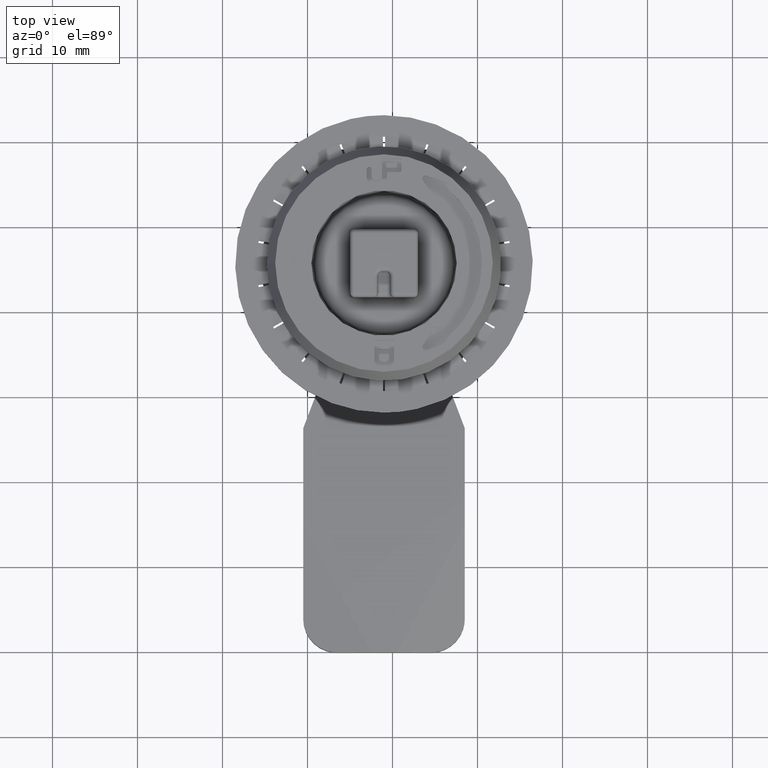
[diagram: clean part render]
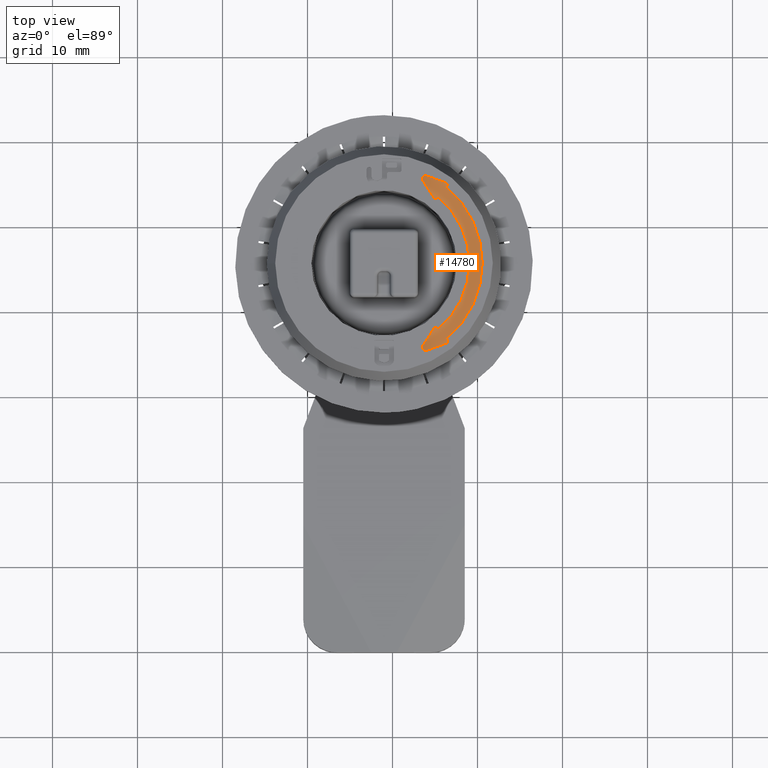
[diagram: same view with one face highlighted and labeled with its STEP entity id]
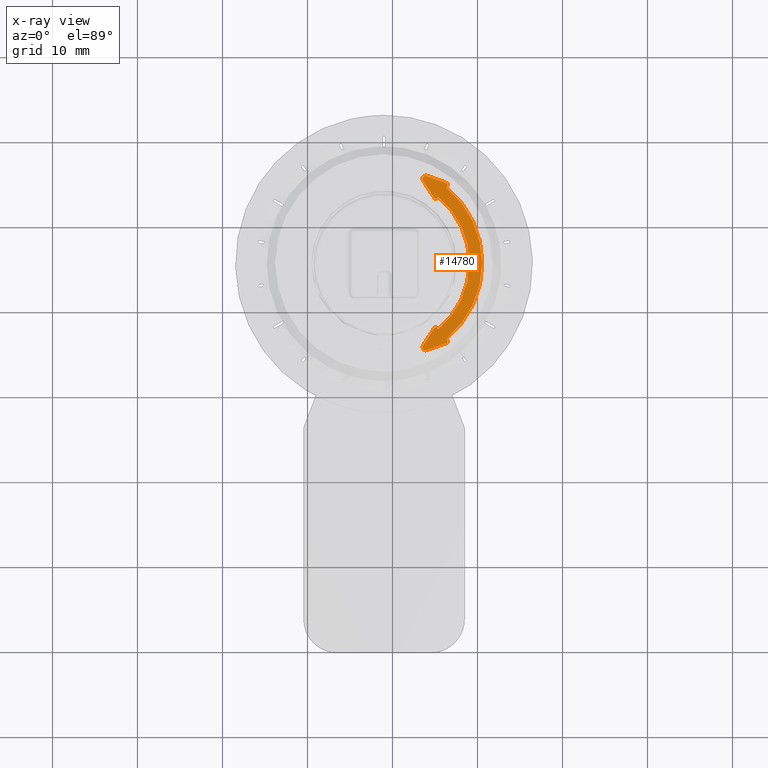
[diagram: x-ray of the same camera — body ghosted, the highlighted face saturated]
A machine part, top view. The second image highlights one B-rep face of the part: STEP entity #14780.
The next image is the same camera in x-ray: the body ghosted, the highlighted face saturated — about 0% of this face is hidden behind the body in this view.
In plain terms, the highlighted planar face has unit normal (0, 0, 1).
Its self-contained STEP definition (entity closure, byte-faithful):
#252=PLANE('',#15726);
#642=CIRCLE('',#15703,10.05);
#643=CIRCLE('',#15706,0.2);
#644=CIRCLE('',#15709,0.375);
#645=CIRCLE('',#15712,0.2);
#646=CIRCLE('',#15715,11.55);
#647=CIRCLE('',#15718,0.2);
#648=CIRCLE('',#15721,0.375);
#649=CIRCLE('',#15724,0.2);
#1435=FACE_OUTER_BOUND('',#2281,.T.);
#2281=EDGE_LOOP('',(#12028,#12029,#12030,#12031,#12032,#12033,#12034,#12035,
#12036,#12037,#12038,#12039,#12040,#12041,#12042,#12043));
#4312=LINE('',#39977,#5347);
#4315=LINE('',#39985,#5350);
#4318=LINE('',#39993,#5353);
#4321=LINE('',#40001,#5356);
#4324=LINE('',#40009,#5359);
#4327=LINE('',#40017,#5362);
#4330=LINE('',#40025,#5365);
#4332=LINE('',#40031,#5367);
#5347=VECTOR('',#17798,0.259996872604128);
#5350=VECTOR('',#17807,2.43790868674977);
#5353=VECTOR('',#17816,2.47070505115499);
#5356=VECTOR('',#17825,0.259269878134381);
#5359=VECTOR('',#17834,0.259269878134349);
#5362=VECTOR('',#17843,2.47070505115536);
#5365=VECTOR('',#17852,2.43790868675029);
#5367=VECTOR('',#17860,0.259996872604128);
#6851=VERTEX_POINT('',#39969);
#6852=VERTEX_POINT('',#39971);
#6853=VERTEX_POINT('',#39975);
#6854=VERTEX_POINT('',#39979);
#6855=VERTEX_POINT('',#39983);
#6856=VERTEX_POINT('',#39987);
#6857=VERTEX_POINT('',#39991);
#6858=VERTEX_POINT('',#39995);
#6859=VERTEX_POINT('',#39999);
#6860=VERTEX_POINT('',#40003);
#6861=VERTEX_POINT('',#40007);
#6862=VERTEX_POINT('',#40011);
#6863=VERTEX_POINT('',#40015);
#6864=VERTEX_POINT('',#40019);
#6865=VERTEX_POINT('',#40023);
#6866=VERTEX_POINT('',#40027);
#8724=EDGE_CURVE('',#6851,#6852,#642,.T.);
#8727=EDGE_CURVE('',#6853,#6851,#4312,.T.);
#8729=EDGE_CURVE('',#6854,#6853,#643,.T.);
#8731=EDGE_CURVE('',#6855,#6854,#4315,.T.);
#8733=EDGE_CURVE('',#6856,#6855,#644,.T.);
#8735=EDGE_CURVE('',#6857,#6856,#4318,.T.);
#8737=EDGE_CURVE('',#6858,#6857,#645,.T.);
#8739=EDGE_CURVE('',#6859,#6858,#4321,.T.);
#8741=EDGE_CURVE('',#6860,#6859,#646,.T.);
#8743=EDGE_CURVE('',#6861,#6860,#4324,.T.);
#8745=EDGE_CURVE('',#6862,#6861,#647,.T.);
#8747=EDGE_CURVE('',#6863,#6862,#4327,.T.);
#8749=EDGE_CURVE('',#6864,#6863,#648,.T.);
#8751=EDGE_CURVE('',#6865,#6864,#4330,.T.);
#8753=EDGE_CURVE('',#6866,#6865,#649,.T.);
#8754=EDGE_CURVE('',#6852,#6866,#4332,.T.);
#12028=ORIENTED_EDGE('',*,*,#8724,.F.);
#12029=ORIENTED_EDGE('',*,*,#8727,.F.);
#12030=ORIENTED_EDGE('',*,*,#8729,.F.);
#12031=ORIENTED_EDGE('',*,*,#8731,.F.);
#12032=ORIENTED_EDGE('',*,*,#8733,.F.);
#12033=ORIENTED_EDGE('',*,*,#8735,.F.);
#12034=ORIENTED_EDGE('',*,*,#8737,.F.);
#12035=ORIENTED_EDGE('',*,*,#8739,.F.);
#12036=ORIENTED_EDGE('',*,*,#8741,.F.);
#12037=ORIENTED_EDGE('',*,*,#8743,.F.);
#12038=ORIENTED_EDGE('',*,*,#8745,.F.);
#12039=ORIENTED_EDGE('',*,*,#8747,.F.);
#12040=ORIENTED_EDGE('',*,*,#8749,.F.);
#12041=ORIENTED_EDGE('',*,*,#8751,.F.);
#12042=ORIENTED_EDGE('',*,*,#8753,.F.);
#12043=ORIENTED_EDGE('',*,*,#8754,.F.);
#14780=ADVANCED_FACE('',(#1435),#252,.T.);
#15703=AXIS2_PLACEMENT_3D('',#39972,#17792,#17793);
#15706=AXIS2_PLACEMENT_3D('',#39981,#17802,#17803);
#15709=AXIS2_PLACEMENT_3D('',#39989,#17811,#17812);
#15712=AXIS2_PLACEMENT_3D('',#39997,#17820,#17821);
#15715=AXIS2_PLACEMENT_3D('',#40005,#17829,#17830);
#15718=AXIS2_PLACEMENT_3D('',#40013,#17838,#17839);
#15721=AXIS2_PLACEMENT_3D('',#40021,#17847,#17848);
#15724=AXIS2_PLACEMENT_3D('',#40029,#17856,#17857);
#15726=AXIS2_PLACEMENT_3D('',#40032,#17861,#17862);
#17792=DIRECTION('center_axis',(0.,0.,1.));
#17793=DIRECTION('ref_axis',(1.,0.,0.));
#17798=DIRECTION('',(0.80468129972339,-0.593707003390962,0.));
#17802=DIRECTION('center_axis',(0.,0.,-1.));
#17803=DIRECTION('ref_axis',(1.,0.,0.));
#17807=DIRECTION('',(0.539794485865493,0.841796835958183,0.));
#17811=DIRECTION('center_axis',(0.,0.,-1.));
#17812=DIRECTION('ref_axis',(1.,0.,0.));
#17816=DIRECTION('',(-0.940288860176007,-0.340377524858656,0.));
#17820=DIRECTION('center_axis',(0.,0.,-1.));
#17821=DIRECTION('ref_axis',(1.,0.,0.));
#17825=DIRECTION('',(0.430621380513122,-0.902532673450093,0.));
#17829=DIRECTION('center_axis',(0.,0.,-1.));
#17830=DIRECTION('ref_axis',(1.,0.,0.));
#17834=DIRECTION('',(-0.430621380513125,-0.902532673450092,0.));
#17838=DIRECTION('center_axis',(0.,0.,-1.));
#17839=DIRECTION('ref_axis',(1.,0.,0.));
#17843=DIRECTION('',(0.940288860176007,-0.340377524858656,0.));
#17847=DIRECTION('center_axis',(0.,0.,-1.));
#17848=DIRECTION('ref_axis',(1.,0.,0.));
#17852=DIRECTION('',(-0.539794485865492,0.841796835958184,0.));
#17856=DIRECTION('center_axis',(0.,0.,-1.));
#17857=DIRECTION('ref_axis',(1.,0.,0.));
#17860=DIRECTION('',(-0.80468129972339,-0.593707003390962,0.));
#17861=DIRECTION('center_axis',(0.,0.,1.));
#17862=DIRECTION('ref_axis',(1.,0.,0.));
#39969=CARTESIAN_POINT('',(175.398437309219,197.25,-1.));
#39971=CARTESIAN_POINT('',(175.398437309219,212.75,-1.));
#39972=CARTESIAN_POINT('Origin',(169.,205.,-1.));
#39975=CARTESIAN_POINT('',(175.189222687848,197.404361964125,-1.));
#39977=CARTESIAN_POINT('',(175.398437309219,197.25,-1.));
#39979=CARTESIAN_POINT('',(174.902121919978,197.351384601353,-1.));
#39981=CARTESIAN_POINT('Origin',(175.07048128717,197.24342570418,-1.));
#39983=CARTESIAN_POINT('',(173.586152253827,195.299160782492,-1.));
#39985=CARTESIAN_POINT('',(174.902121919978,197.351384601353,-1.));
#39987=CARTESIAN_POINT('',(174.029467639133,194.744129527727,-1.));
#39989=CARTESIAN_POINT('Origin',(173.901826067311,195.096737850292,-1.));
#39991=CARTESIAN_POINT('',(176.352644075515,195.585101997694,-1.));
#39993=CARTESIAN_POINT('',(174.029467639133,194.744129527727,-1.));
#39995=CARTESIAN_POINT('',(176.465075105233,195.859284045832,-1.));
#39997=CARTESIAN_POINT('Origin',(176.284568570543,195.77315976973,-1.));
#39999=CARTESIAN_POINT('',(176.353427952386,196.09328358209,-1.));
#40001=CARTESIAN_POINT('',(176.465075105233,195.859284045832,-1.));
#40003=CARTESIAN_POINT('',(176.353427952386,213.90671641791,-1.));
#40005=CARTESIAN_POINT('Origin',(169.,205.,-1.));
#40007=CARTESIAN_POINT('',(176.465075105233,214.140715954168,-1.));
#40009=CARTESIAN_POINT('',(176.353427952386,213.90671641791,-1.));
#40011=CARTESIAN_POINT('',(176.352644075515,214.414898002306,-1.));
#40013=CARTESIAN_POINT('Origin',(176.284568570543,214.22684023027,-1.));
#40015=CARTESIAN_POINT('',(174.029467639133,215.255870472274,-1.));
#40017=CARTESIAN_POINT('',(176.352644075515,214.414898002306,-1.));
#40019=CARTESIAN_POINT('',(173.586152253826,214.700839217508,-1.));
#40021=CARTESIAN_POINT('Origin',(173.901826067311,214.903262149708,-1.));
#40023=CARTESIAN_POINT('',(174.902121919978,212.648615398647,-1.));
#40025=CARTESIAN_POINT('',(173.586152253827,214.700839217508,-1.));
#40027=CARTESIAN_POINT('',(175.189222687848,212.595638035875,-1.));
#40029=CARTESIAN_POINT('Origin',(175.07048128717,212.75657429582,-1.));
#40031=CARTESIAN_POINT('',(175.189222687848,212.595638035875,-1.));
#40032=CARTESIAN_POINT('Origin',(169.,205.,-1.));